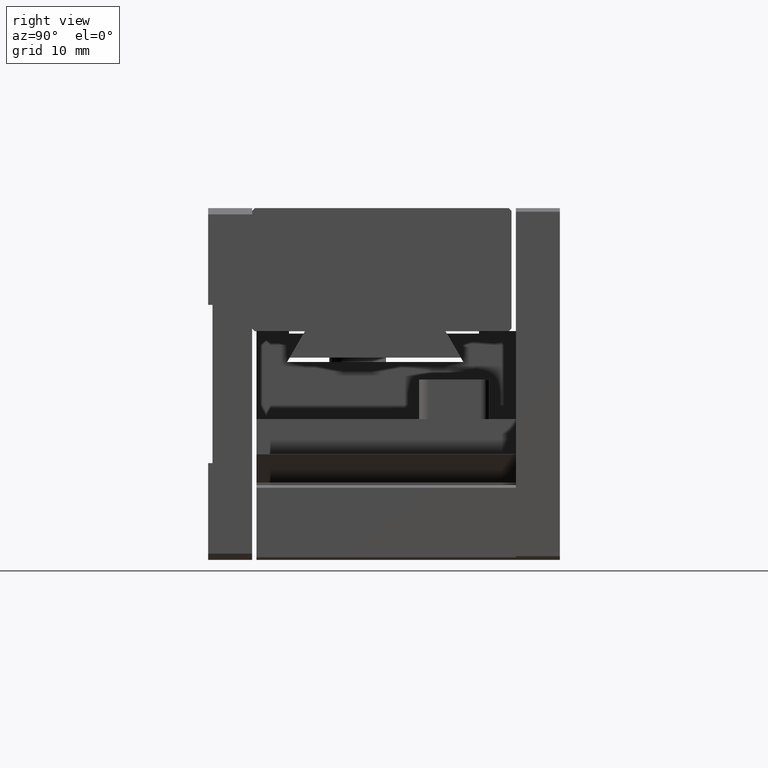
[diagram: clean part render]
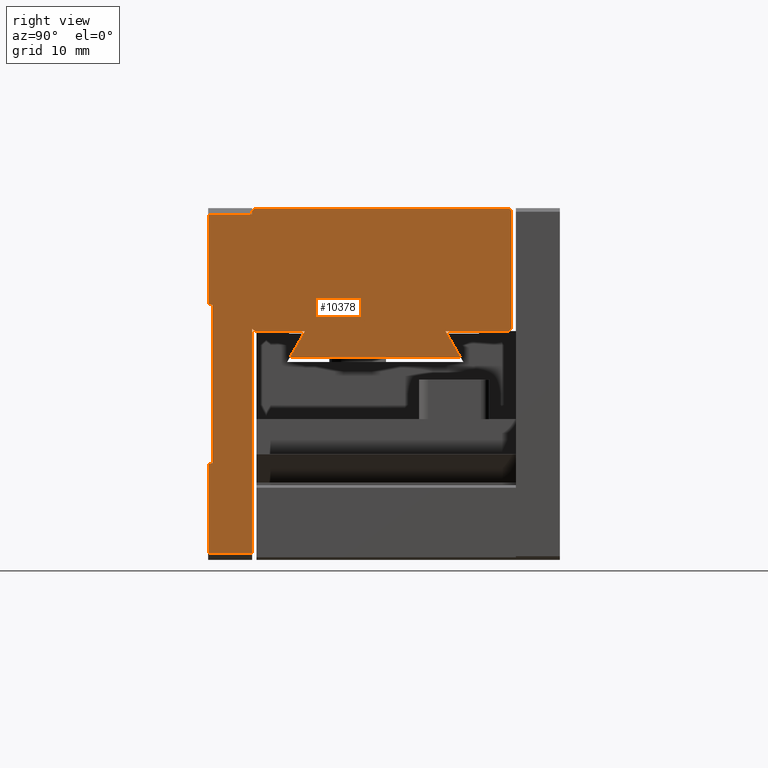
[diagram: same view with one face highlighted and labeled with its STEP entity id]
A machine part, right view. The second image highlights one B-rep face of the part: STEP entity #10378.
In plain terms, the highlighted planar face has unit normal (1, 0, 0).
Its self-contained STEP definition (entity closure, byte-faithful):
#49 = EDGE_LOOP ( 'NONE', ( #1236, #3416, #13077, #16423, #8324, #4520, #3598, #10688, #15409, #8635, #18581, #15445, #12059, #4934, #16780, #492, #17159, #11347, #18560, #7599 ) ) ;
#70 = DIRECTION ( 'NONE',  ( 0.000000000000000000, 0.000000000000000000, -1.000000000000000000 ) ) ;
#391 = EDGE_CURVE ( 'NONE', #14085, #16266, #11971, .T. ) ;
#417 = VECTOR ( 'NONE', #9394, 1000.000000000000000 ) ;
#492 = ORIENTED_EDGE ( 'NONE', *, *, #7290, .T. ) ;
#574 = VERTEX_POINT ( 'NONE', #648 ) ;
#575 = CARTESIAN_POINT ( 'NONE',  ( 40.00000000000000000, 0.000000000000000000, -29.00000000000000000 ) ) ;
#577 = DIRECTION ( 'NONE',  ( 0.000000000000000000, 0.000000000000000000, -1.000000000000000000 ) ) ;
#609 = EDGE_CURVE ( 'NONE', #574, #19285, #15473, .T. ) ;
#648 = CARTESIAN_POINT ( 'NONE',  ( 40.00000000000000000, 34.49999999999999289, -13.69999999999999396 ) ) ;
#734 = VECTOR ( 'NONE', #3225, 1000.000000000000000 ) ;
#794 = VECTOR ( 'NONE', #15248, 1000.000000000000000 ) ;
#812 = CARTESIAN_POINT ( 'NONE',  ( 40.00000000000000000, 5.000000000000000000, -13.70000000000000107 ) ) ;
#840 = VECTOR ( 'NONE', #6915, 1000.000000000000000 ) ;
#886 = DIRECTION ( 'NONE',  ( -0.000000000000000000, 0.7071067811865191510, 0.7071067811865761055 ) ) ;
#1105 = VERTEX_POINT ( 'NONE', #4724 ) ;
#1151 = CARTESIAN_POINT ( 'NONE',  ( 40.00000000000000000, 0.000000000000000000, -0.7099999999999999645 ) ) ;
#1167 = EDGE_CURVE ( 'NONE', #16987, #7022, #6584, .T. ) ;
#1234 = DIRECTION ( 'NONE',  ( 0.000000000000000000, 1.000000000000000000, 0.000000000000000000 ) ) ;
#1236 = ORIENTED_EDGE ( 'NONE', *, *, #2294, .T. ) ;
#1377 = LINE ( 'NONE', #7175, #5797 ) ;
#1411 = VERTEX_POINT ( 'NONE', #10480 ) ;
#1792 = LINE ( 'NONE', #18467, #11477 ) ;
#1976 = DIRECTION ( 'NONE',  ( 0.000000000000000000, -0.7071067811865355823, 0.7071067811865594521 ) ) ;
#1981 = DIRECTION ( 'NONE',  ( 0.000000000000000000, 1.000000000000000000, 0.000000000000000000 ) ) ;
#2054 = DIRECTION ( 'NONE',  ( 1.000000000000000000, 0.000000000000000000, 0.000000000000000000 ) ) ;
#2294 = EDGE_CURVE ( 'NONE', #1105, #1411, #10148, .T. ) ;
#2710 = VECTOR ( 'NONE', #1976, 1000.000000000000114 ) ;
#2842 = DIRECTION ( 'NONE',  ( -0.000000000000000000, -1.000000000000000000, -0.000000000000000000 ) ) ;
#2970 = EDGE_CURVE ( 'NONE', #3929, #11923, #6507, .T. ) ;
#3037 = VERTEX_POINT ( 'NONE', #8177 ) ;
#3225 = DIRECTION ( 'NONE',  ( 0.000000000000000000, 1.000000000000000000, 0.000000000000000000 ) ) ;
#3239 = CARTESIAN_POINT ( 'NONE',  ( 39.99999999999999289, -3.252606517456513302E-16, -39.29000000000000625 ) ) ;
#3279 = LINE ( 'NONE', #18196, #13687 ) ;
#3416 = ORIENTED_EDGE ( 'NONE', *, *, #15483, .T. ) ;
#3598 = ORIENTED_EDGE ( 'NONE', *, *, #7957, .T. ) ;
#3782 = LINE ( 'NONE', #16128, #11120 ) ;
#3929 = VERTEX_POINT ( 'NONE', #18582 ) ;
#3997 = VERTEX_POINT ( 'NONE', #8476 ) ;
#4220 = CARTESIAN_POINT ( 'NONE',  ( 40.00000000000000000, 27.00000000000001066, -13.99999999999999467 ) ) ;
#4343 = CARTESIAN_POINT ( 'NONE',  ( 40.00000000000000000, 28.73199999999999932, -17.00000000000000000 ) ) ;
#4428 = VERTEX_POINT ( 'NONE', #3239 ) ;
#4520 = ORIENTED_EDGE ( 'NONE', *, *, #1167, .F. ) ;
#4724 = CARTESIAN_POINT ( 'NONE',  ( 40.00000000000000000, 4.999999999999999112, -0.3000000000000109246 ) ) ;
#4934 = ORIENTED_EDGE ( 'NONE', *, *, #11085, .T. ) ;
#5048 = EDGE_CURVE ( 'NONE', #11923, #17217, #3782, .T. ) ;
#5050 = VECTOR ( 'NONE', #2842, 1000.000000000000000 ) ;
#5506 = VERTEX_POINT ( 'NONE', #4220 ) ;
#5691 = CARTESIAN_POINT ( 'NONE',  ( 40.00000000000000000, 0.5000000000000000000, -11.00000000000000000 ) ) ;
#5797 = VECTOR ( 'NONE', #10209, 1000.000000000000000 ) ;
#5838 = DIRECTION ( 'NONE',  ( -0.000000000000000000, 0.7071067811864800712, -0.7071067811866150743 ) ) ;
#5856 = VECTOR ( 'NONE', #70, 1000.000000000000000 ) ;
#6061 = CARTESIAN_POINT ( 'NONE',  ( 40.00000000000000000, 0.000000000000000000, -39.28999999999999915 ) ) ;
#6507 = LINE ( 'NONE', #17080, #6992 ) ;
#6584 = LINE ( 'NONE', #7871, #11583 ) ;
#6671 = AXIS2_PLACEMENT_3D ( 'NONE', #10883, #2054, #577 ) ;
#6709 = CARTESIAN_POINT ( 'NONE',  ( 40.00000000000000000, 0.000000000000000000, -14.00000000000000000 ) ) ;
#6915 = DIRECTION ( 'NONE',  ( 0.000000000000000000, 0.000000000000000000, -1.000000000000000000 ) ) ;
#6992 = VECTOR ( 'NONE', #8267, 1000.000000000000000 ) ;
#7022 = VERTEX_POINT ( 'NONE', #8974 ) ;
#7175 = CARTESIAN_POINT ( 'NONE',  ( 40.00000000000000000, 11.00000000000000000, -14.00000000000000000 ) ) ;
#7290 = EDGE_CURVE ( 'NONE', #3997, #574, #11392, .T. ) ;
#7535 = LINE ( 'NONE', #6061, #11056 ) ;
#7599 = ORIENTED_EDGE ( 'NONE', *, *, #16009, .T. ) ;
#7615 = EDGE_CURVE ( 'NONE', #19285, #10981, #16788, .T. ) ;
#7832 = LINE ( 'NONE', #6709, #417 ) ;
#7871 = CARTESIAN_POINT ( 'NONE',  ( 40.00000000000000000, 0.5000000000000000000, -29.00000000000000000 ) ) ;
#7957 = EDGE_CURVE ( 'NONE', #16987, #4428, #18594, .T. ) ;
#8177 = CARTESIAN_POINT ( 'NONE',  ( 40.00000000000000000, 9.267999999999970484, -17.00000000000000000 ) ) ;
#8267 = DIRECTION ( 'NONE',  ( -0.000000000000000000, -0.000000000000000000, 1.000000000000000000 ) ) ;
#8324 = ORIENTED_EDGE ( 'NONE', *, *, #13429, .T. ) ;
#8457 = DIRECTION ( 'NONE',  ( -0.000000000000000000, -1.000000000000000000, -6.083000475477650450E-17 ) ) ;
#8476 = CARTESIAN_POINT ( 'NONE',  ( 40.00000000000000000, 34.19999999999999574, -14.00000000000000178 ) ) ;
#8635 = ORIENTED_EDGE ( 'NONE', *, *, #5048, .T. ) ;
#8861 = DIRECTION ( 'NONE',  ( 0.000000000000000000, -0.4999889997176581447, 0.8660317547072599043 ) ) ;
#8879 = DIRECTION ( 'NONE',  ( -0.000000000000000000, -0.7071067811864810704, -0.7071067811866140751 ) ) ;
#8974 = CARTESIAN_POINT ( 'NONE',  ( 40.00000000000000000, 0.5000000000000000000, -29.00000000000000000 ) ) ;
#9111 = CARTESIAN_POINT ( 'NONE',  ( 40.00000000000000000, 0.000000000000000000, 0.000000000000000000 ) ) ;
#9394 = DIRECTION ( 'NONE',  ( 0.000000000000000000, 1.000000000000000000, 0.000000000000000000 ) ) ;
#9511 = FACE_OUTER_BOUND ( 'NONE', #49, .T. ) ;
#9609 = VECTOR ( 'NONE', #15975, 1000.000000000000000 ) ;
#9644 = LINE ( 'NONE', #18574, #794 ) ;
#9854 = CARTESIAN_POINT ( 'NONE',  ( 40.00000000000000000, 0.000000000000000000, 0.000000000000000000 ) ) ;
#9897 = LINE ( 'NONE', #1151, #9609 ) ;
#10060 = CARTESIAN_POINT ( 'NONE',  ( 40.00000000000000000, 34.50000000000000000, -0.3000000000000102029 ) ) ;
#10113 = CARTESIAN_POINT ( 'NONE',  ( 40.00000000000000000, 5.299999999999960743, 2.344575718713736567E-15 ) ) ;
#10148 = LINE ( 'NONE', #14759, #15120 ) ;
#10209 = DIRECTION ( 'NONE',  ( 0.000000000000000000, -0.4999889997176641954, -0.8660317547072564626 ) ) ;
#10378 = ADVANCED_FACE ( 'NONE', ( #9511 ), #12258, .T. ) ;
#10480 = CARTESIAN_POINT ( 'NONE',  ( 40.00000000000000000, 5.000000000000000000, -0.7099999999999999645 ) ) ;
#10671 = EDGE_CURVE ( 'NONE', #4428, #3929, #7535, .T. ) ;
#10688 = ORIENTED_EDGE ( 'NONE', *, *, #10671, .T. ) ;
#10765 = EDGE_CURVE ( 'NONE', #17217, #13273, #7832, .T. ) ;
#10883 = CARTESIAN_POINT ( 'NONE',  ( 40.00000000000000000, 0.000000000000000000, 0.000000000000000000 ) ) ;
#10912 = LINE ( 'NONE', #12152, #734 ) ;
#10920 = VERTEX_POINT ( 'NONE', #10113 ) ;
#10981 = VERTEX_POINT ( 'NONE', #11691 ) ;
#10999 = VECTOR ( 'NONE', #15660, 1000.000000000000000 ) ;
#11056 = VECTOR ( 'NONE', #1234, 1000.000000000000000 ) ;
#11085 = EDGE_CURVE ( 'NONE', #14818, #5506, #13459, .T. ) ;
#11120 = VECTOR ( 'NONE', #5838, 1000.000000000000000 ) ;
#11258 = EDGE_CURVE ( 'NONE', #5506, #3997, #10912, .T. ) ;
#11296 = CARTESIAN_POINT ( 'NONE',  ( 40.00000000000000000, 34.20000000000000284, 1.776356839400250070E-15 ) ) ;
#11347 = ORIENTED_EDGE ( 'NONE', *, *, #7615, .T. ) ;
#11392 = LINE ( 'NONE', #11682, #18390 ) ;
#11477 = VECTOR ( 'NONE', #1981, 1000.000000000000000 ) ;
#11532 = DIRECTION ( 'NONE',  ( 0.000000000000000000, 0.000000000000000000, -1.000000000000000000 ) ) ;
#11583 = VECTOR ( 'NONE', #18640, 1000.000000000000000 ) ;
#11682 = CARTESIAN_POINT ( 'NONE',  ( 40.00000000000000000, 34.20000000000000284, -14.00000000000000000 ) ) ;
#11691 = CARTESIAN_POINT ( 'NONE',  ( 40.00000000000000000, 34.20000000000000995, 5.063928876919421285E-15 ) ) ;
#11908 = CARTESIAN_POINT ( 'NONE',  ( 40.00000000000000000, 11.00000000000000000, -14.00000000000000000 ) ) ;
#11923 = VERTEX_POINT ( 'NONE', #812 ) ;
#11971 = LINE ( 'NONE', #5691, #5050 ) ;
#12046 = LINE ( 'NONE', #9111, #5856 ) ;
#12059 = ORIENTED_EDGE ( 'NONE', *, *, #13864, .T. ) ;
#12152 = CARTESIAN_POINT ( 'NONE',  ( 40.00000000000000000, 0.000000000000000000, -14.00000000000000000 ) ) ;
#12258 = PLANE ( 'NONE',  #6671 ) ;
#12433 = CARTESIAN_POINT ( 'NONE',  ( 40.00000000000000000, 34.50000000000000000, 0.000000000000000000 ) ) ;
#12464 = EDGE_CURVE ( 'NONE', #13273, #3037, #1377, .T. ) ;
#13077 = ORIENTED_EDGE ( 'NONE', *, *, #14499, .T. ) ;
#13273 = VERTEX_POINT ( 'NONE', #11908 ) ;
#13429 = EDGE_CURVE ( 'NONE', #14085, #7022, #9644, .T. ) ;
#13459 = LINE ( 'NONE', #4343, #17012 ) ;
#13687 = VECTOR ( 'NONE', #8879, 1000.000000000000000 ) ;
#13864 = EDGE_CURVE ( 'NONE', #3037, #14818, #1792, .T. ) ;
#14085 = VERTEX_POINT ( 'NONE', #15207 ) ;
#14213 = CARTESIAN_POINT ( 'NONE',  ( 40.00000000000000000, 34.50000000000000000, -0.3000000000000099809 ) ) ;
#14424 = LINE ( 'NONE', #11296, #15903 ) ;
#14499 = EDGE_CURVE ( 'NONE', #16368, #16266, #12046, .T. ) ;
#14759 = CARTESIAN_POINT ( 'NONE',  ( 40.00000000000000000, 5.000000000000000000, 0.000000000000000000 ) ) ;
#14818 = VERTEX_POINT ( 'NONE', #16608 ) ;
#15072 = EDGE_CURVE ( 'NONE', #10981, #10920, #14424, .T. ) ;
#15120 = VECTOR ( 'NONE', #11532, 1000.000000000000000 ) ;
#15207 = CARTESIAN_POINT ( 'NONE',  ( 40.00000000000000000, 0.5000000000000000000, -11.00000000000000000 ) ) ;
#15248 = DIRECTION ( 'NONE',  ( 0.000000000000000000, 0.000000000000000000, -1.000000000000000000 ) ) ;
#15409 = ORIENTED_EDGE ( 'NONE', *, *, #2970, .T. ) ;
#15445 = ORIENTED_EDGE ( 'NONE', *, *, #12464, .T. ) ;
#15473 = LINE ( 'NONE', #12433, #10999 ) ;
#15483 = EDGE_CURVE ( 'NONE', #1411, #16368, #9897, .T. ) ;
#15660 = DIRECTION ( 'NONE',  ( -0.000000000000000000, -0.000000000000000000, 1.000000000000000000 ) ) ;
#15903 = VECTOR ( 'NONE', #8457, 1000.000000000000000 ) ;
#15975 = DIRECTION ( 'NONE',  ( -0.000000000000000000, -1.000000000000000000, -0.000000000000000000 ) ) ;
#16009 = EDGE_CURVE ( 'NONE', #10920, #1105, #3279, .T. ) ;
#16099 = CARTESIAN_POINT ( 'NONE',  ( 40.00000000000000000, 0.000000000000000000, -11.00000000000000000 ) ) ;
#16128 = CARTESIAN_POINT ( 'NONE',  ( 40.00000000000000000, 5.000000000000000000, -13.70000000000000107 ) ) ;
#16148 = CARTESIAN_POINT ( 'NONE',  ( 40.00000000000000000, 5.299999999999955413, -14.00000000000000533 ) ) ;
#16266 = VERTEX_POINT ( 'NONE', #16099 ) ;
#16368 = VERTEX_POINT ( 'NONE', #17473 ) ;
#16423 = ORIENTED_EDGE ( 'NONE', *, *, #391, .F. ) ;
#16608 = CARTESIAN_POINT ( 'NONE',  ( 40.00000000000000000, 28.73199999999999932, -17.00000000000000000 ) ) ;
#16780 = ORIENTED_EDGE ( 'NONE', *, *, #11258, .T. ) ;
#16788 = LINE ( 'NONE', #14213, #2710 ) ;
#16987 = VERTEX_POINT ( 'NONE', #575 ) ;
#17012 = VECTOR ( 'NONE', #8861, 1000.000000000000000 ) ;
#17080 = CARTESIAN_POINT ( 'NONE',  ( 40.00000000000000000, 5.000000000000000000, 0.000000000000000000 ) ) ;
#17159 = ORIENTED_EDGE ( 'NONE', *, *, #609, .T. ) ;
#17217 = VERTEX_POINT ( 'NONE', #16148 ) ;
#17473 = CARTESIAN_POINT ( 'NONE',  ( 40.00000000000000000, 0.000000000000000000, -0.7099999999999999645 ) ) ;
#18196 = CARTESIAN_POINT ( 'NONE',  ( 40.00000000000000000, 5.299999999999950973, 1.836970198720749950E-17 ) ) ;
#18390 = VECTOR ( 'NONE', #886, 999.9999999999998863 ) ;
#18467 = CARTESIAN_POINT ( 'NONE',  ( 40.00000000000000000, 0.000000000000000000, -17.00000000000000000 ) ) ;
#18560 = ORIENTED_EDGE ( 'NONE', *, *, #15072, .T. ) ;
#18574 = CARTESIAN_POINT ( 'NONE',  ( 40.00000000000000000, 0.5000000000000000000, 0.000000000000000000 ) ) ;
#18581 = ORIENTED_EDGE ( 'NONE', *, *, #10765, .T. ) ;
#18582 = CARTESIAN_POINT ( 'NONE',  ( 39.99999999999999289, 5.000000000000000000, -39.29000000000000625 ) ) ;
#18594 = LINE ( 'NONE', #9854, #840 ) ;
#18640 = DIRECTION ( 'NONE',  ( 0.000000000000000000, 1.000000000000000000, 0.000000000000000000 ) ) ;
#19285 = VERTEX_POINT ( 'NONE', #10060 ) ;